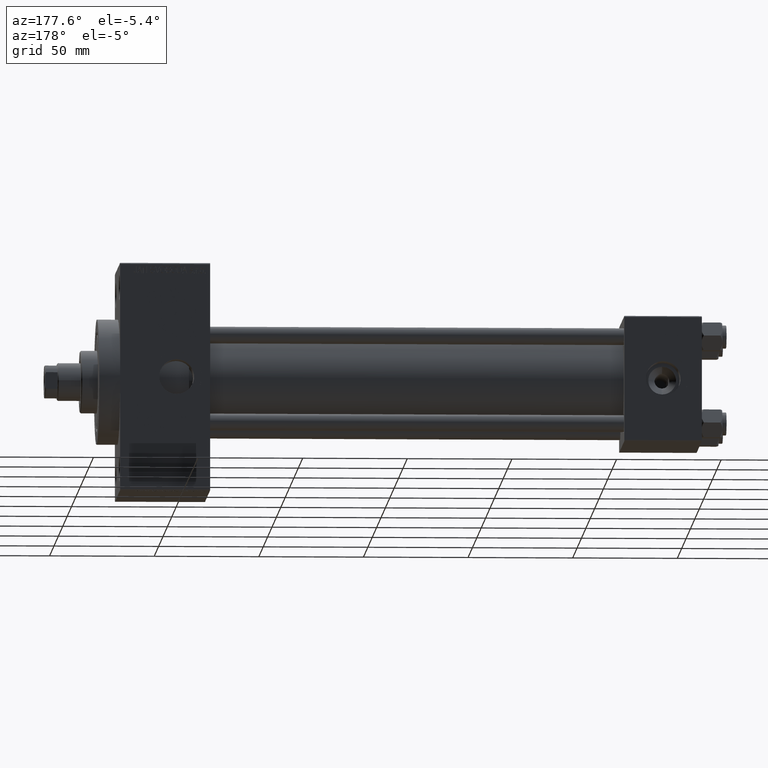
[diagram: clean part render]
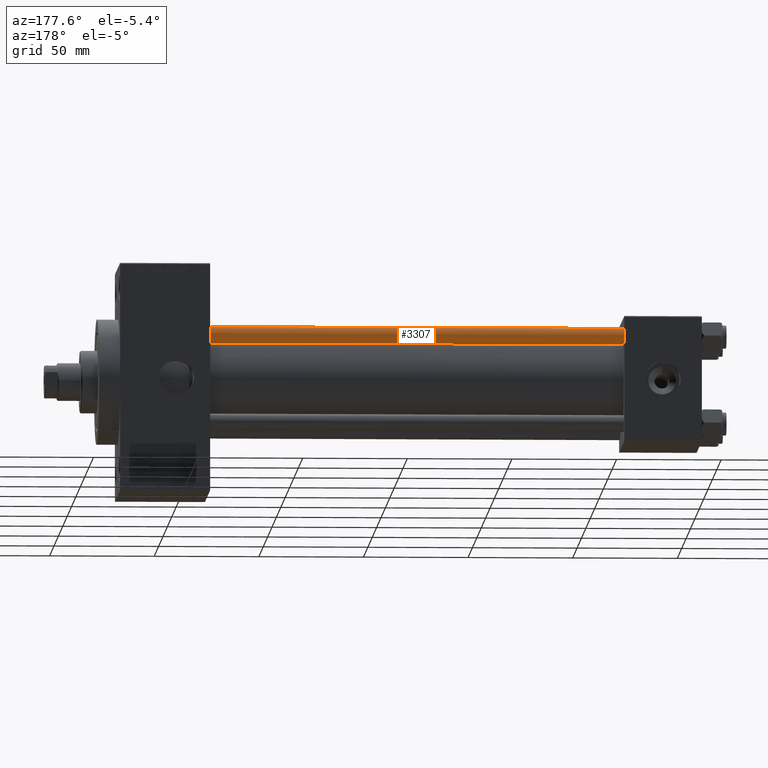
[diagram: same view with one face highlighted and labeled with its STEP entity id]
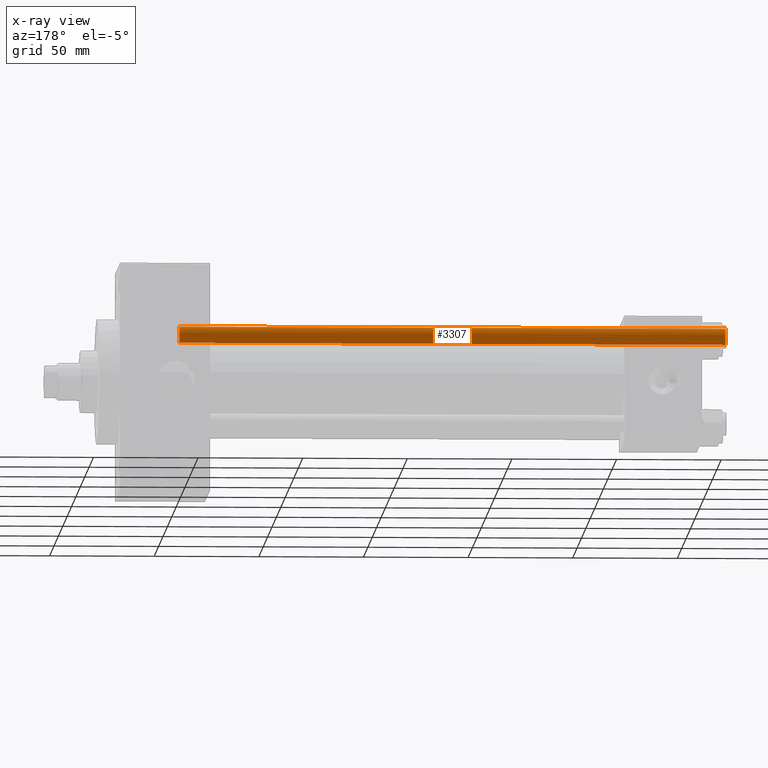
[diagram: x-ray of the same camera — body ghosted, the highlighted face saturated]
A machine part, auxiliary view. The second image highlights one B-rep face of the part: STEP entity #3307.
The next image is the same camera in x-ray: the body ghosted, the highlighted face saturated — about 0% of this face is hidden behind the body in this view.
In plain terms, the highlighted cylindrical surface (edge-blend (fillet) strip) has radius 4 mm, axis along (-1, -0, 0).
Its self-contained STEP definition (entity closure, byte-faithful):
#239 = DIRECTION ( 'NONE',  ( -0.000000000000000000, -0.000000000000000000, 1.000000000000000000 ) ) ;
#1061 = DIRECTION ( 'NONE',  ( -0.000000000000000000, -0.000000000000000000, -1.000000000000000000 ) ) ;
#2592 = ORIENTED_EDGE ( 'NONE', *, *, #44164, .F. ) ;
#3307 = ADVANCED_FACE ( 'NONE', ( #39605 ), #47367, .T. ) ;
#4494 = CARTESIAN_POINT ( 'NONE',  ( 0.000000000000000000, 0.000000000000000000, 0.5000000000000559552 ) ) ;
#5085 = VECTOR ( 'NONE', #31053, 1000.000000000000000 ) ;
#7661 = CARTESIAN_POINT ( 'NONE',  ( 4.000000000000000000, 4.898587196589412829E-16, 0.5000000000000559552 ) ) ;
#7957 = CARTESIAN_POINT ( 'NONE',  ( -4.000000000000000000, 0.000000000000000000, 262.0000000000000000 ) ) ;
#8808 = CARTESIAN_POINT ( 'NONE',  ( 0.000000000000000000, 0.000000000000000000, 262.0000000000000000 ) ) ;
#10400 = DIRECTION ( 'NONE',  ( 0.000000000000000000, 0.000000000000000000, -1.000000000000000000 ) ) ;
#11458 = DIRECTION ( 'NONE',  ( -0.000000000000000000, -0.000000000000000000, -1.000000000000000000 ) ) ;
#12078 = CARTESIAN_POINT ( 'NONE',  ( 4.000000000000000000, 4.898587196589412829E-16, 261.5000000000000000 ) ) ;
#12217 = ORIENTED_EDGE ( 'NONE', *, *, #32801, .T. ) ;
#12802 = VERTEX_POINT ( 'NONE', #7661 ) ;
#13054 = DIRECTION ( 'NONE',  ( -1.000000000000000000, 0.000000000000000000, 0.000000000000000000 ) ) ;
#15293 = CIRCLE ( 'NONE', #40075, 4.000000000000000000 ) ;
#17399 = VERTEX_POINT ( 'NONE', #22850 ) ;
#17439 = CIRCLE ( 'NONE', #37469, 4.000000000000000000 ) ;
#18451 = EDGE_LOOP ( 'NONE', ( #12217, #46915, #41874, #2592 ) ) ;
#21093 = AXIS2_PLACEMENT_3D ( 'NONE', #8808, #1061, #13054 ) ;
#22850 = CARTESIAN_POINT ( 'NONE',  ( -4.000000000000000000, 0.000000000000000000, 261.5000000000000000 ) ) ;
#23035 = LINE ( 'NONE', #38319, #5085 ) ;
#25689 = DIRECTION ( 'NONE',  ( 1.000000000000000000, 0.000000000000000000, 0.000000000000000000 ) ) ;
#30324 = VERTEX_POINT ( 'NONE', #46522 ) ;
#30750 = LINE ( 'NONE', #7957, #38640 ) ;
#31053 = DIRECTION ( 'NONE',  ( -0.000000000000000000, -0.000000000000000000, -1.000000000000000000 ) ) ;
#32801 = EDGE_CURVE ( 'NONE', #17399, #48318, #17439, .T. ) ;
#37469 = AXIS2_PLACEMENT_3D ( 'NONE', #44719, #10400, #25689 ) ;
#38319 = CARTESIAN_POINT ( 'NONE',  ( 4.000000000000000000, 4.898587196589412829E-16, 262.0000000000000000 ) ) ;
#38404 = EDGE_CURVE ( 'NONE', #12802, #30324, #15293, .T. ) ;
#38640 = VECTOR ( 'NONE', #11458, 1000.000000000000000 ) ;
#39605 = FACE_OUTER_BOUND ( 'NONE', #18451, .T. ) ;
#40075 = AXIS2_PLACEMENT_3D ( 'NONE', #4494, #239, #46049 ) ;
#41874 = ORIENTED_EDGE ( 'NONE', *, *, #38404, .T. ) ;
#43795 = EDGE_CURVE ( 'NONE', #48318, #12802, #23035, .T. ) ;
#44164 = EDGE_CURVE ( 'NONE', #17399, #30324, #30750, .T. ) ;
#44719 = CARTESIAN_POINT ( 'NONE',  ( 0.000000000000000000, 0.000000000000000000, 261.5000000000000000 ) ) ;
#46049 = DIRECTION ( 'NONE',  ( 1.000000000000000000, 0.000000000000000000, 0.000000000000000000 ) ) ;
#46522 = CARTESIAN_POINT ( 'NONE',  ( -4.000000000000000000, 0.000000000000000000, 0.5000000000000559552 ) ) ;
#46915 = ORIENTED_EDGE ( 'NONE', *, *, #43795, .T. ) ;
#47367 = CYLINDRICAL_SURFACE ( 'NONE', #21093, 4.000000000000000000 ) ;
#48318 = VERTEX_POINT ( 'NONE', #12078 ) ;